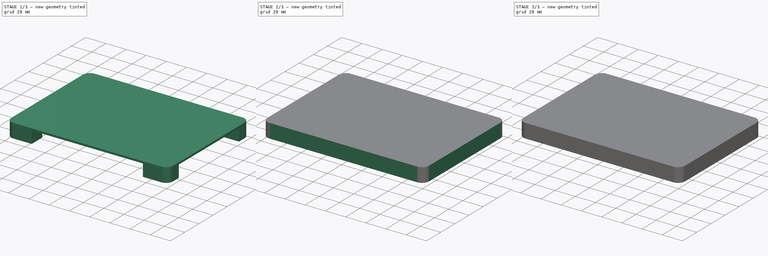
[diagram: build sequence overview — one tinted view per stage of 3, left to right]
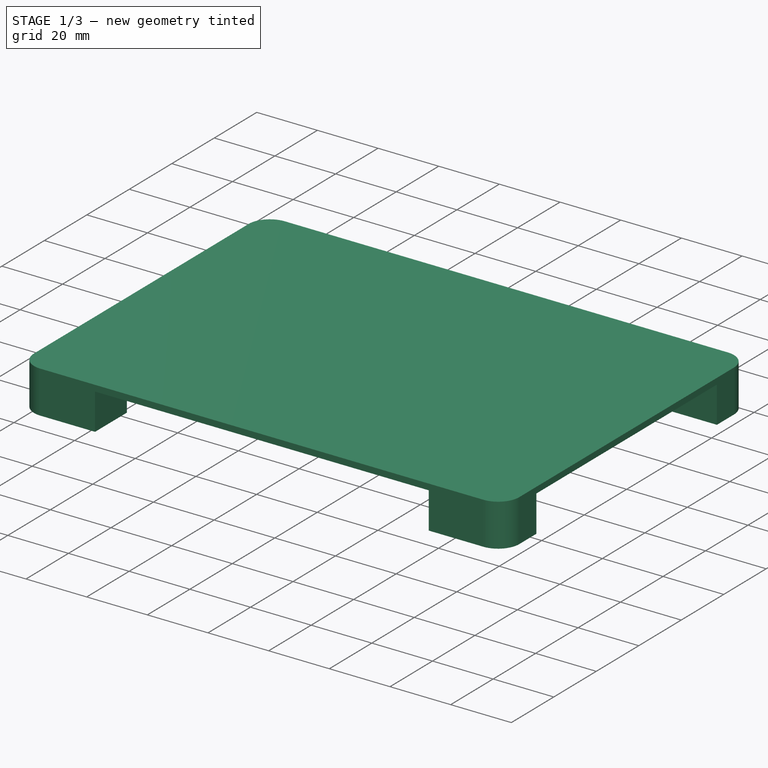
[diagram: stage 1 of 3 — iso view after this stage's code; geometry added in this stage tinted green]
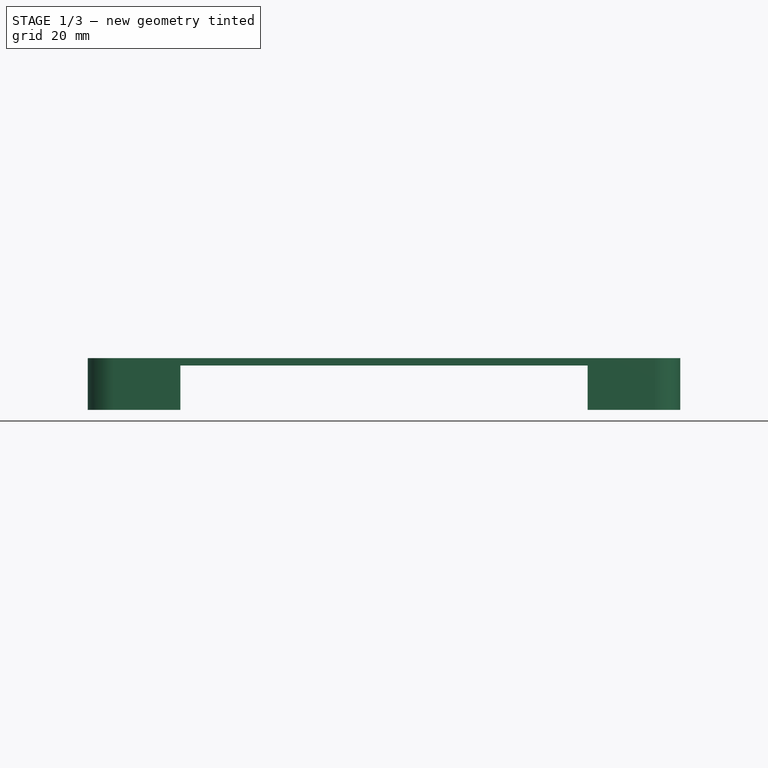
[diagram: stage 1 of 3 — front view after this stage's code; geometry added in this stage tinted green]
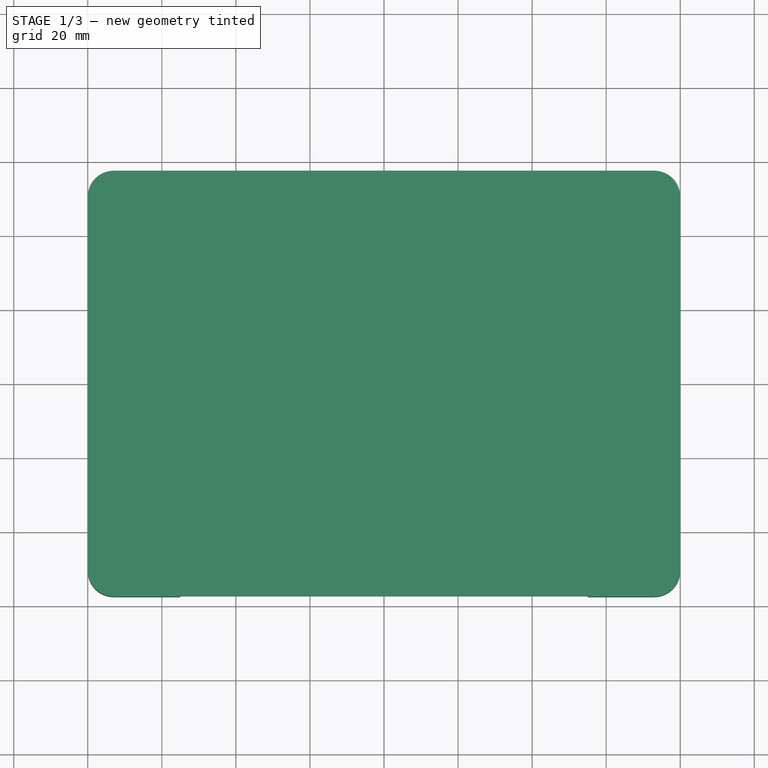
[diagram: stage 1 of 3 — top view after this stage's code; geometry added in this stage tinted green]
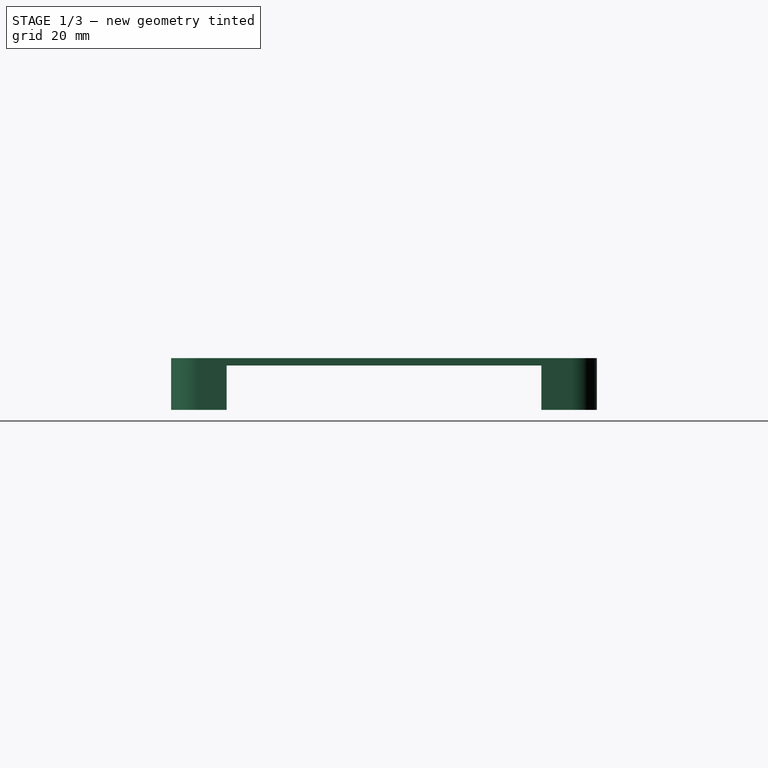
[diagram: stage 1 of 3 — right view after this stage's code; geometry added in this stage tinted green]
FCSTD DOCUMENT  (FreeCAD 1.0R39109 (Git))
Label: magictrackpad-stand
License: All rights reserved
LicenseURL: http://en.wikipedia.org/wiki/All_rights_reserved
objects: Sketcher::SketchObject×3, PartDesign::Pad×3, Part::Part2DObjectPython×2, Part::Extrusion×2, Spreadsheet::Sheet×1, PartDesign::Body×1, Part::MultiFuse×1
note: 21 computed .brp shape members not serialized (recipe doc carries the construction recipe); baked Part::Feature solids carry a one-line shape summary decoded from their .brp

FEATURE [Sketcher::SketchObject] Sketch  label="top-sk"
  ArcFitTolerance = 1e-06
  AttachmentSupport = -> [XY_Plane]
  FullyConstrained = true
  MakeInternals = false
  MapMode = 5
  expr: Constraints[4] = Spreadsheet.magictrackpad_length
  expr: Constraints[5] = Spreadsheet.magictrackpad_width
  sketch-geometry (14):
    g0: LineSegment StartX=-80 StartY=50.5 StartZ=0 EndX=-80 EndY=-50.5 EndZ=0
    g1: LineSegment StartX=-73 StartY=-57.5 StartZ=0 EndX=73 EndY=-57.5 EndZ=0
    g2: LineSegment StartX=80 StartY=-50.5 StartZ=0 EndX=80 EndY=50.5 EndZ=0
    g3: LineSegment StartX=73 StartY=57.5 StartZ=0 EndX=-73 EndY=57.5 EndZ=0
    g4: GeomPoint X=0 Y=57.5 Z=0
    g5: GeomPoint X=-80 Y=0 Z=0
    g6: ArcOfCircle CenterX=-73 CenterY=50.5 CenterZ=0 NormalX=0 NormalY=0 NormalZ=1 AngleXU=0 Radius=7 StartAngle=1.5708 EndAngle=3.14159
    g7: GeomPoint [constr] X=-80 Y=57.5 Z=0
    g8: ArcOfCircle CenterX=73 CenterY=50.5 CenterZ=0 NormalX=0 NormalY=0 NormalZ=1 AngleXU=0 Radius=7 StartAngle=2e-16 EndAngle=1.5708
    g9: GeomPoint [constr] X=80 Y=57.5 Z=0
    g10: ArcOfCircle CenterX=73 CenterY=-50.5 CenterZ=0 NormalX=0 NormalY=0 NormalZ=1 AngleXU=0 Radius=7 StartAngle=4.71239 EndAngle=6.28319
    g11: GeomPoint [constr] X=80 Y=-57.5 Z=0
    g12: ArcOfCircle CenterX=-73 CenterY=-50.5 CenterZ=0 NormalX=0 NormalY=0 NormalZ=1 AngleXU=0 Radius=7 StartAngle=3.14159 EndAngle=4.71239
    g13: GeomPoint [constr] X=-80 Y=-57.5 Z=0
  constraints (30):
    c: Vertical(g0)
    c: Vertical(g2)
    c: Horizontal(g1)
    c: Horizontal(g3)
    c: DistanceY(g13,g7) = 115
    c: DistanceX(g7,g9) = 160
    c: Symmetric(g9,g7,g4)
    c: Symmetric(g7,g13,g5)
    c: PointOnObject(g4,g-2)
    c: PointOnObject(g5,g-1)
    c: PointOnObject(g7,g0)
    c: PointOnObject(g7,g3)
    c: Tangent(g0,g6) = -1.5708
    c: Tangent(g3,g6) = -1.5708
    c: PointOnObject(g9,g2)
    c: PointOnObject(g9,g3)
    c: Tangent(g2,g8) = -1.5708
    c: Tangent(g3,g8) = -1.5708
    c: PointOnObject(g11,g1)
    c: PointOnObject(g11,g2)
    c: Tangent(g1,g10) = -1.5708
    c: Tangent(g2,g10) = -1.5708
    c: PointOnObject(g13,g0)
    c: PointOnObject(g13,g1)
    c: Tangent(g0,g12) = -1.5708
    c: Tangent(g1,g12) = -1.5708
    c: DistanceY(g0,g3) = 7
    c: Horizontal(g0,g2)
    c: Vertical(g1,g3)
    c: Horizontal(g0,g2)
FEATURE [PartDesign::Pad] Pad  label="top"
  Direction = (0,0,1)
  Length = 2
  Length2 = 10
  Profile = -> Sketch
  ReferenceAxis = -> Sketch [N_Axis]
  Suppressed = false
  Type = 0
  expr: Length = Spreadsheet.table_thickness
FEATURE [Sketcher::SketchObject] Sketch001  label="poll-sk"
  ArcFitTolerance = 1e-06
  AttachmentSupport = -> [Pad]
  ExternalGeometry = -> [Pad]
  FullyConstrained = true
  MakeInternals = false
  MapMode = 5
  Placement = pos=(0,0,0) rot=(1,0,0;3.14159rad)
  expr: Constraints[13] = Spreadsheet.poll_width
  expr: Constraints[14] = Spreadsheet.poll_length
  expr: Constraints[56] = Spreadsheet.poll_length
  expr: Constraints[58] = Spreadsheet.poll_width
  sketch-geometry (24):
    g0: LineSegment StartX=-80 StartY=50.5 StartZ=0 EndX=-80 EndY=42.5 EndZ=0
    g1: LineSegment StartX=-80 StartY=42.5 StartZ=0 EndX=-55 EndY=42.5 EndZ=0
    g2: LineSegment StartX=-55 StartY=42.5 StartZ=0 EndX=-55 EndY=57.5 EndZ=0
    g3: LineSegment StartX=-55 StartY=57.5 StartZ=0 EndX=-73 EndY=57.5 EndZ=0
    g4: ArcOfCircle CenterX=-73 CenterY=50.5 CenterZ=0 NormalX=0 NormalY=0 NormalZ=1 AngleXU=0 Radius=7 StartAngle=1.5708 EndAngle=3.14159
    g5: GeomPoint [constr] X=-80 Y=57.5 Z=0
    g6: LineSegment StartX=55 StartY=57.5 StartZ=0 EndX=55 EndY=42.5 EndZ=0
    g7: LineSegment StartX=55 StartY=42.5 StartZ=0 EndX=80 EndY=42.5 EndZ=0
    g8: LineSegment StartX=80 StartY=42.5 StartZ=0 EndX=80 EndY=50.5 EndZ=0
    g9: LineSegment StartX=73 StartY=57.5 StartZ=0 EndX=55 EndY=57.5 EndZ=0
    g10: LineSegment StartX=-80 StartY=-42.5 StartZ=0 EndX=-80 EndY=-50.5 EndZ=0
    g11: LineSegment StartX=-73 StartY=-57.5 StartZ=0 EndX=-55 EndY=-57.5 EndZ=0
    g12: LineSegment StartX=-55 StartY=-57.5 StartZ=0 EndX=-55 EndY=-42.5 EndZ=0
    g13: LineSegment StartX=-55 StartY=-42.5 StartZ=0 EndX=-80 EndY=-42.5 EndZ=0
    g14: LineSegment StartX=55 StartY=-57.5 StartZ=0 EndX=73 EndY=-57.5 EndZ=0
    g15: LineSegment StartX=80 StartY=-50.5 StartZ=0 EndX=80 EndY=-42.5 EndZ=0
    g16: LineSegment StartX=80 StartY=-42.5 StartZ=0 EndX=55 EndY=-42.5 EndZ=0
    g17: LineSegment StartX=55 StartY=-42.5 StartZ=0 EndX=55 EndY=-57.5 EndZ=0
    g18: ArcOfCircle CenterX=73 CenterY=50.5 CenterZ=0 NormalX=0 NormalY=0 NormalZ=1 AngleXU=0 Radius=7 StartAngle=0 EndAngle=1.5708
    g19: GeomPoint [constr] X=80 Y=57.5 Z=0
    g20: ArcOfCircle CenterX=73 CenterY=-50.5 CenterZ=0 NormalX=0 NormalY=0 NormalZ=1 AngleXU=0 Radius=7 StartAngle=4.71239 EndAngle=6.28319
    g21: GeomPoint [constr] X=80 Y=-57.5 Z=0
    g22: ArcOfCircle CenterX=-73 CenterY=-50.5 CenterZ=0 NormalX=0 NormalY=0 NormalZ=1 AngleXU=0 Radius=7 StartAngle=3.14159 EndAngle=4.71239
    g23: GeomPoint [constr] X=-80 Y=-57.5 Z=0
  constraints (60):
    c: Coincident(g0,g1)
    c: Coincident(g1,g2)
    c: Coincident(g2,g3)
    c: Vertical(g0)
    c: Vertical(g2)
    c: Horizontal(g1)
    c: Horizontal(g3)
    c: PointOnObject(g-5,g3)
    c: PointOnObject(g5,g0)
    c: PointOnObject(g5,g3)
    c: Tangent(g0,g4) = -1.5708
    c: Tangent(g3,g4) = -1.5708
    c: Coincident(g0,g-3)
    c: DistanceX(g1,g1) = 25
    c: DistanceY(g2,g2) = 15
    c: Coincident(g6,g7)
    c: Coincident(g7,g8)
    c: Coincident(g9,g6)
    c: Vertical(g6)
    c: Vertical(g8)
    c: Horizontal(g7)
    c: Horizontal(g9)
    c: PointOnObject(g6,g-5)
    c: Coincident(g11,g12)
    c: Coincident(g12,g13)
    c: Coincident(g13,g10)
    c: Vertical(g10)
    c: Vertical(g12)
    c: Horizontal(g11)
    c: Horizontal(g13)
    c: PointOnObject(g10,g-3)
    c: Coincident(g15,g16)
    c: Coincident(g16,g17)
    c: Coincident(g17,g14)
    c: Horizontal(g14)
    c: Horizontal(g16)
    c: Vertical(g15)
    c: Vertical(g17)
    c: PointOnObject(g15,g-4)
    c: PointOnObject(g19,g8)
    c: PointOnObject(g19,g9)
    c: Tangent(g8,g18) = -1.5708
    c: Tangent(g9,g18) = -1.5708
    c: PointOnObject(g21,g14)
    c: PointOnObject(g21,g15)
    c: Tangent(g14,g20) = -1.5708
    c: Tangent(g15,g20) = -1.5708
    c: PointOnObject(g23,g10)
    c: PointOnObject(g23,g11)
    c: Tangent(g10,g22) = -1.5708
    c: Tangent(g11,g22) = -1.5708
    c: Coincident(g11,g-6)
    c: Coincident(g-6,g14)
    c: Coincident(g-4,g8)
    c: Horizontal(g1,g7)
    c: Vertical(g1,g12)
    c: DistanceY(g12,g12) = 15
    c: Horizontal(g12,g16)
    c: DistanceX(g7,g7) = 25
    c: Vertical(g6,g16)
FEATURE [Spreadsheet::Sheet] Spreadsheet
  cells = C1='入力値; D1='計算値; E1='choc; F1='MX; B2='MagicTrackPad横幅; C2=160; D2(magictrackpad_width)==C2; B3='MagicTrackPad縦幅; C3=115; D3(magictrackpad_length)==C3; B4='テーブルの厚さ; C4=2; D4(table_thickness)==C4; B5='MagicTackpadの指が届くところの最大厚さ; C5=8; D5==C5; B6='ゴム足; C6=1; D6==C6; B7='目標高さ; C7=15; D7==C7; E7=10; F7=15; B8='柱の横幅; C8=25; D8(poll_width)==C8; B9='柱の縦幅; C9=15; D9(poll_length)==C9; B10='枠の厚さ; C10=1; D10(edge_width)==C10; B12='柱の高さ; D12(poll_hight)==D7 - D6 - D4
FEATURE [PartDesign::Pad] Pad001  label="poll"
  BaseFeature = -> Pad
  Direction = (0,0,-1)
  Length = 12
  Length2 = 10
  Profile = -> Sketch001
  ReferenceAxis = -> Sketch001 [N_Axis]
  Suppressed = false
  Type = 0
  expr: Length = Spreadsheet.poll_hight
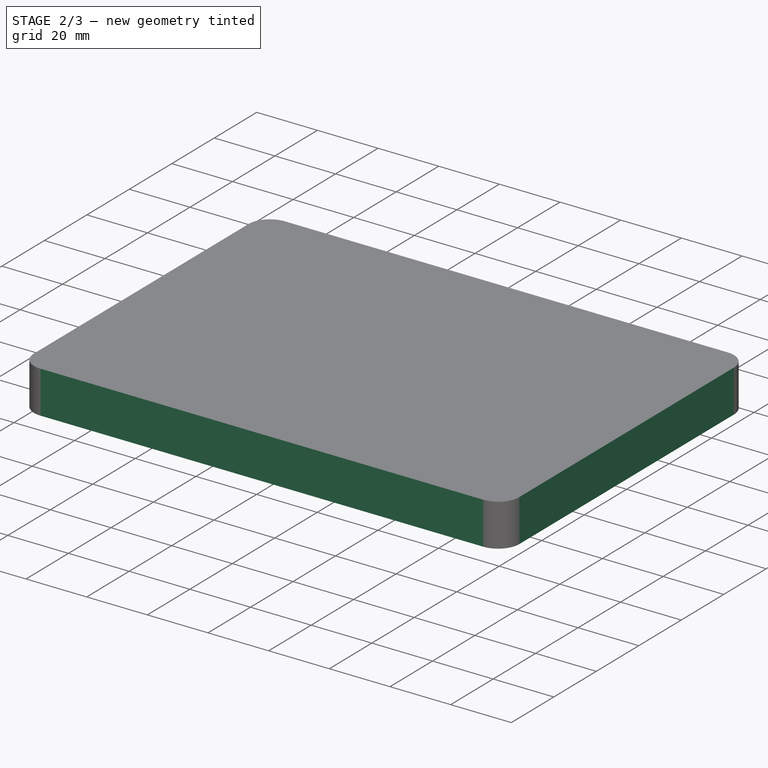
[diagram: stage 2 of 3 — iso view after this stage's code; geometry added in this stage tinted green]
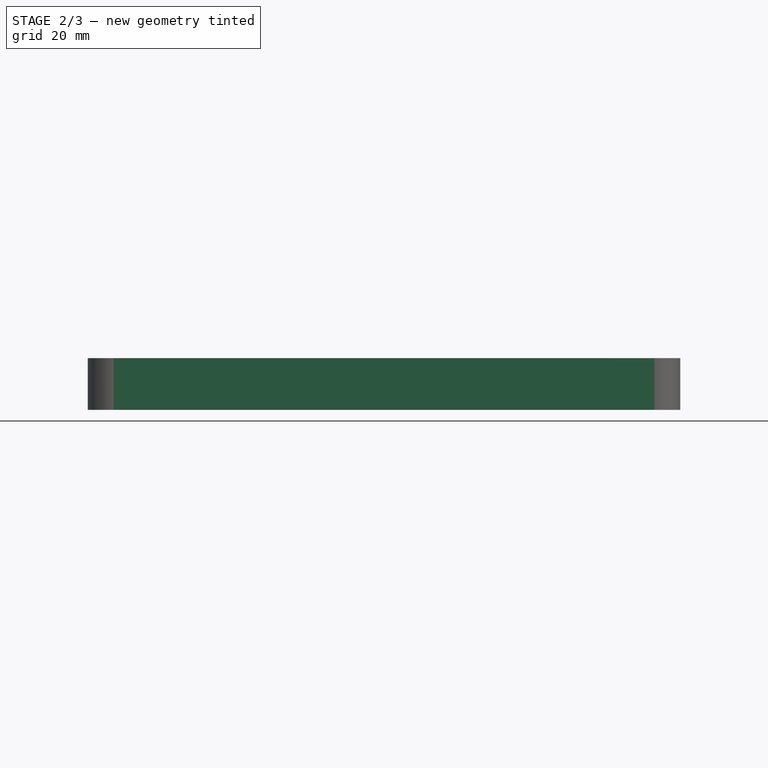
[diagram: stage 2 of 3 — front view after this stage's code; geometry added in this stage tinted green]
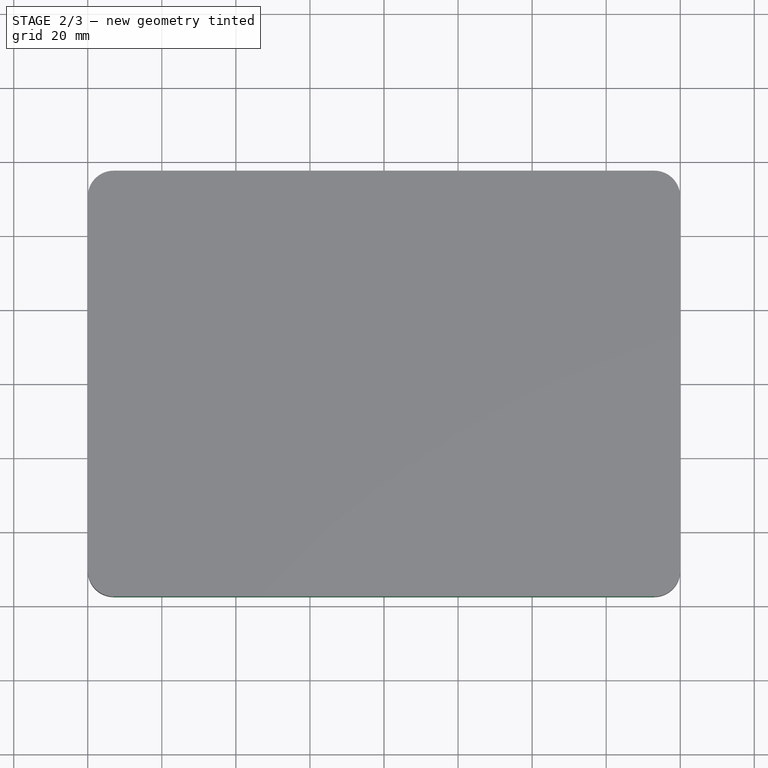
[diagram: stage 2 of 3 — top view after this stage's code; geometry added in this stage tinted green]
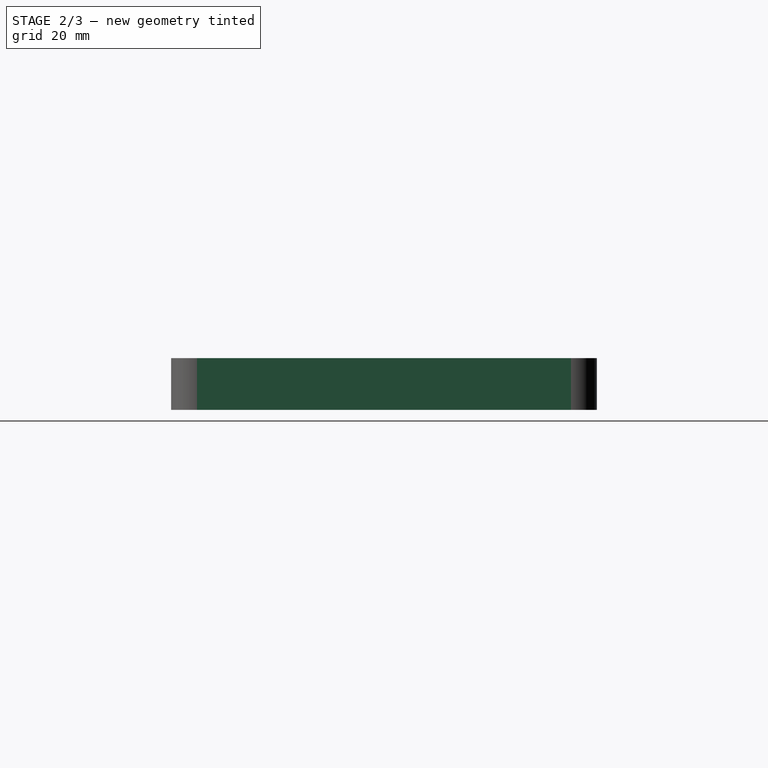
[diagram: stage 2 of 3 — right view after this stage's code; geometry added in this stage tinted green]
FEATURE [Part::Part2DObjectPython] ShapeString001  label="version-shape"  # Draft 2D object (typed FeaturePython)
  FontFile = <userpath>/Library/Fonts/MonaspaceArgon-Medium.otf
  Fuse = false
  Justification = 6
  JustificationReference = 0
  KeepLeftMargin = false
  MakeFace = true
  ObliqueAngle = 0
  Placement = pos=(-28,-29,0) rot=(0,-1,0;3.14159rad)
  ScaleToSize = true
  Size = 5
  String = v2.1.0-MX
  Tracking = 0
FEATURE [Part::Extrusion] Extrude001  label="version"
  Base = -> ShapeString001
  Dir = (0,0,-1)
  DirMode = 2
  FaceMakerClass = Part::FaceMakerBullseye
  FaceMakerMode = 3
  LengthFwd = 0.7
  LengthRev = 0
  Solid = false
  Symmetric = false
FEATURE [Sketcher::SketchObject] Sketch002  label="edge-sk"
  ArcFitTolerance = 1e-06
  AttachmentSupport = -> [Pad]
  ExternalGeometry = -> [Pad]
  FullyConstrained = true
  MakeInternals = false
  MapMode = 5
  Placement = pos=(0,0,0) rot=(1,0,0;3.14159rad)
  sketch-geometry (16):
    g0: LineSegment StartX=-80 StartY=50.5 StartZ=0 EndX=-80 EndY=-50.5 EndZ=0
    g1: LineSegment StartX=80 StartY=-50.5 StartZ=0 EndX=80 EndY=50.5 EndZ=0
    g2: LineSegment StartX=-73 StartY=57.5 StartZ=0 EndX=73 EndY=57.5 EndZ=0
    g3: LineSegment StartX=-73 StartY=-57.5 StartZ=0 EndX=73 EndY=-57.5 EndZ=0
    g4: ArcOfCircle CenterX=-73 CenterY=50.5 CenterZ=0 NormalX=0 NormalY=0 NormalZ=1 AngleXU=0 Radius=7 StartAngle=1.5708 EndAngle=3.14159
    g5: ArcOfCircle CenterX=73 CenterY=50.5 CenterZ=0 NormalX=0 NormalY=0 NormalZ=1 AngleXU=0 Radius=7 StartAngle=-2.7e-15 EndAngle=1.5708
    g6: ArcOfCircle CenterX=-73 CenterY=-50.5 CenterZ=0 NormalX=0 NormalY=0 NormalZ=1 AngleXU=0 Radius=7 StartAngle=3.14159 EndAngle=4.71239
    g7: ArcOfCircle CenterX=73 CenterY=-50.5 CenterZ=0 NormalX=0 NormalY=0 NormalZ=1 AngleXU=0 Radius=7 StartAngle=4.71239 EndAngle=6.28319
    g8: ArcOfCircle CenterX=-73 CenterY=50.5 CenterZ=0 NormalX=0 NormalY=0 NormalZ=1 AngleXU=0 Radius=6 StartAngle=1.5708 EndAngle=3.14159
    g9: ArcOfCircle CenterX=-73 CenterY=-50.5 CenterZ=0 NormalX=0 NormalY=0 NormalZ=1 AngleXU=0 Radius=6 StartAngle=3.14159 EndAngle=4.71239
    g10: ArcOfCircle CenterX=73 CenterY=-50.5 CenterZ=0 NormalX=0 NormalY=0 NormalZ=1 AngleXU=0 Radius=6 StartAngle=4.71239 EndAngle=6.28319
    g11: ArcOfCircle CenterX=73 CenterY=50.5 CenterZ=0 NormalX=0 NormalY=0 NormalZ=1 AngleXU=0 Radius=6 StartAngle=-3.6e-15 EndAngle=1.5708
    g12: LineSegment StartX=79 StartY=50.5 StartZ=0 EndX=79 EndY=-50.5 EndZ=0
    g13: LineSegment StartX=73 StartY=-56.5 StartZ=0 EndX=-73 EndY=-56.5 EndZ=0
    g14: LineSegment StartX=-79 StartY=-50.5 StartZ=0 EndX=-79 EndY=50.5 EndZ=0
    g15: LineSegment StartX=-73 StartY=56.5 StartZ=0 EndX=73 EndY=56.5 EndZ=0
  constraints (44):
    c: Coincident(g4,g2)
    c: Coincident(g4,g0)
    c: Vertical(g4,g2)
    c: Coincident(g5,g1)
    c: Coincident(g5,g2)
    c: Coincident(g1,g-5)
    c: Coincident(g-4,g2)
    c: Horizontal(g5,g4)
    c: Coincident(g2,g-4)
    c: Coincident(g0,g-3)
    c: Coincident(g0,g-3)
    c: Coincident(g6,g0)
    c: Coincident(g6,g3)
    c: Coincident(g3,g-6)
    c: Vertical(g6,g4)
    c: Coincident(g3,g-6)
    c: Coincident(g-5,g1)
    c: Coincident(g7,g1)
    c: Coincident(g7,g3)
    c: Vertical(g7,g5)
    c: Coincident(g8,g4)
    c: Vertical(g8,g2)
    c: Horizontal(g8,g0)
    c: Radius(g8) = 6
    c: Coincident(g9,g6)
    c: Horizontal(g9,g0)
    c: Vertical(g9,g3)
    c: Radius(g9) = 6
    c: Coincident(g10,g7)
    c: Vertical(g3,g10)
    c: Horizontal(g10,g1)
    c: Radius(g10) = 6
    c: Coincident(g11,g5)
    c: Horizontal(g11,g1)
    c: Vertical(g11,g2)
    c: Radius(g11) = 6
    c: Coincident(g12,g11)
    c: Coincident(g12,g10)
    c: Coincident(g13,g10)
    c: Coincident(g13,g9)
    c: Coincident(g14,g9)
    c: Coincident(g14,g8)
    c: Coincident(g15,g8)
    c: Coincident(g15,g11)
FEATURE [PartDesign::Pad] Pad002  label="edge"
  BaseFeature = -> Pad001
  Direction = (0,0,-1)
  Length = 12
  Length2 = 10
  Profile = -> Sketch002
  ReferenceAxis = -> Sketch002 [N_Axis]
  Refine = true
  Suppressed = false
  Type = 0
  expr: Length = Spreadsheet.poll_hight
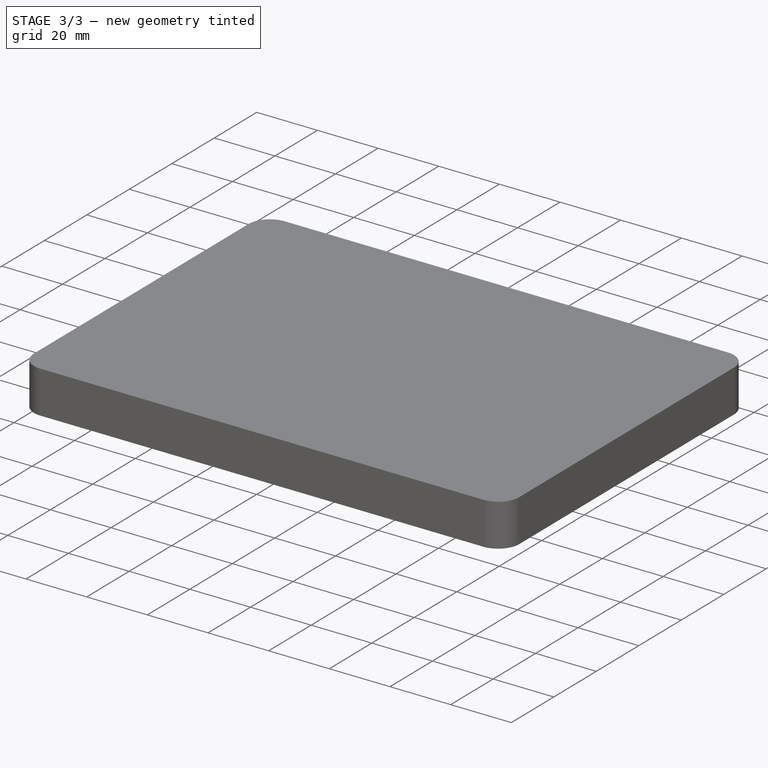
[diagram: stage 3 of 3 — iso view after this stage's code; geometry added in this stage tinted green]
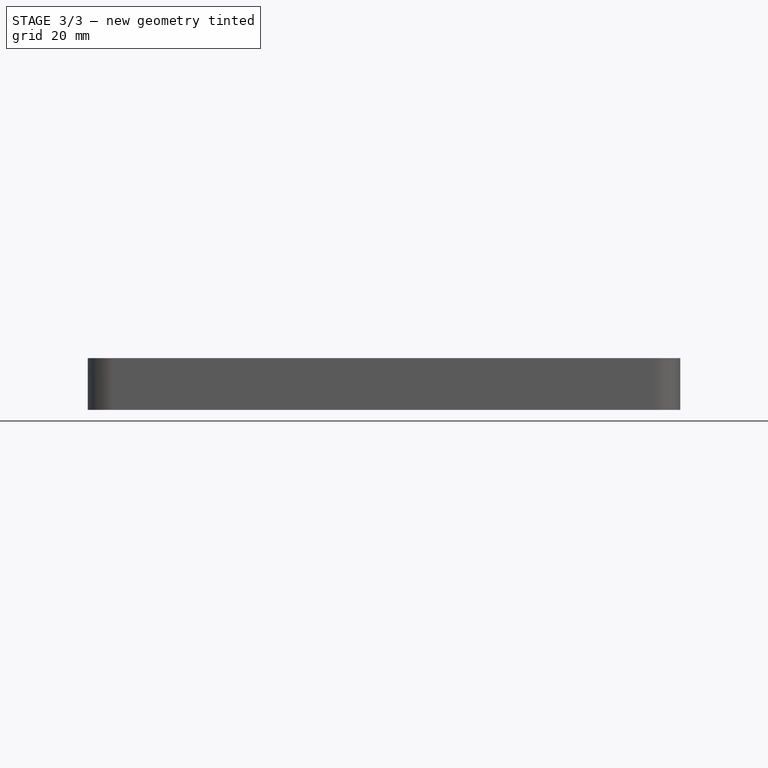
[diagram: stage 3 of 3 — front view after this stage's code; geometry added in this stage tinted green]
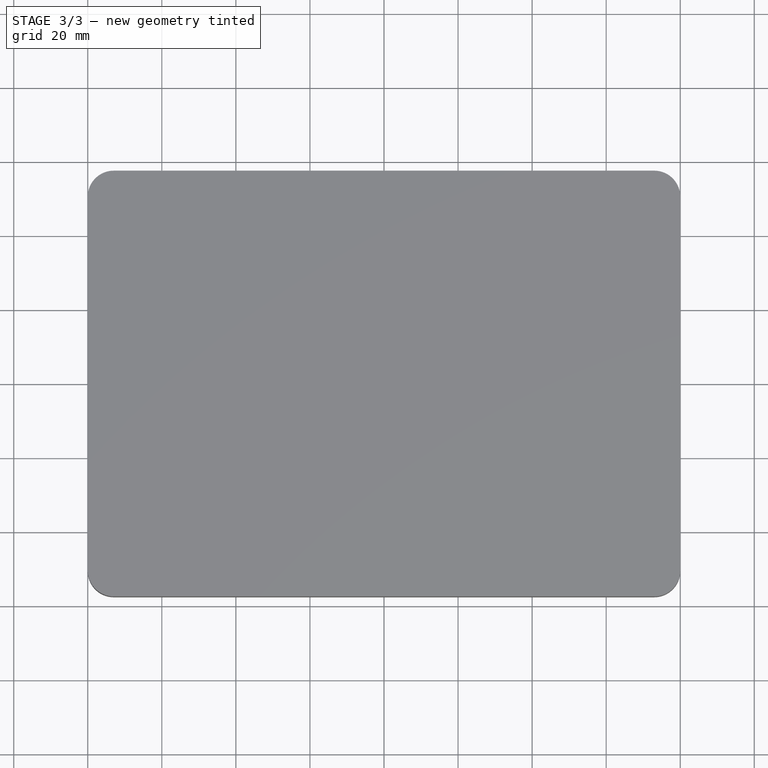
[diagram: stage 3 of 3 — top view after this stage's code; geometry added in this stage tinted green]
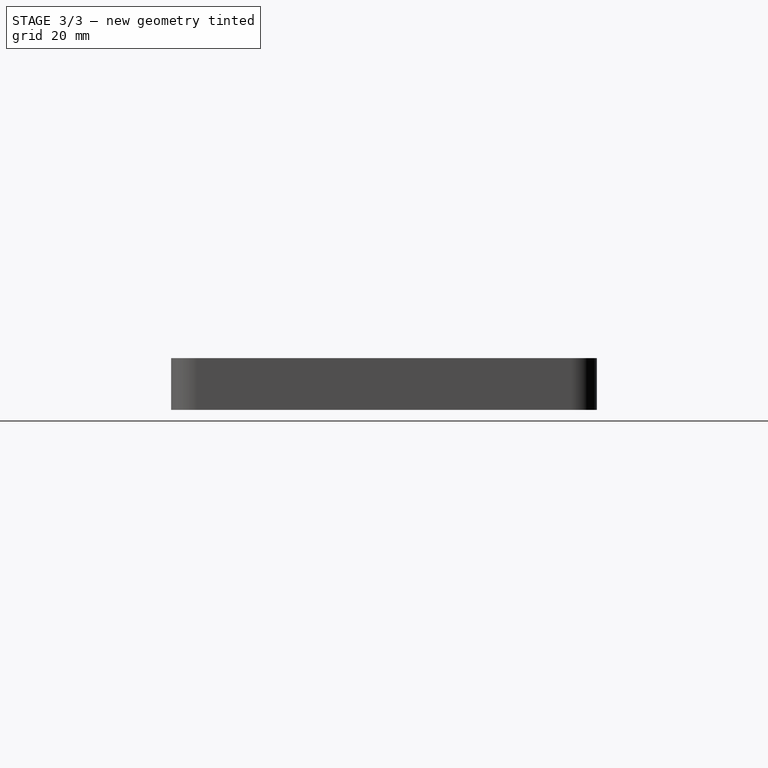
[diagram: stage 3 of 3 — right view after this stage's code; geometry added in this stage tinted green]
FEATURE [Part::Part2DObjectPython] ShapeString  label="title-shape"  # Draft 2D object (typed FeaturePython)
  FontFile = <userpath>/Library/Fonts/MonaspaceArgon-Medium.otf
  Fuse = false
  Justification = 6
  JustificationReference = 0
  KeepLeftMargin = false
  MakeFace = true
  ObliqueAngle = 0
  Placement = pos=(0,-20,0) rot=(0,1,0;3.14159rad)
  ScaleToSize = true
  Size = 5
  String = MagicTrackPadStand
  Tracking = 0
FEATURE [Part::Extrusion] Extrude  label="title"
  Base = -> ShapeString
  Dir = (0,0,-1)
  DirMode = 2
  FaceMakerClass = Part::FaceMakerBullseye
  FaceMakerMode = 3
  LengthFwd = 0.8
  LengthRev = 0
  Solid = false
  Symmetric = false
FEATURE [PartDesign::Body] Body
  AllowCompound = false
  Group = -> [Sketch,Pad,Sketch001,Pad001,Sketch002,Pad002]
  Origin = -> Origin
  Tip = -> Pad002
FEATURE [Part::MultiFuse] Fusion
  Shapes = -> [Body,Extrude,Extrude001]
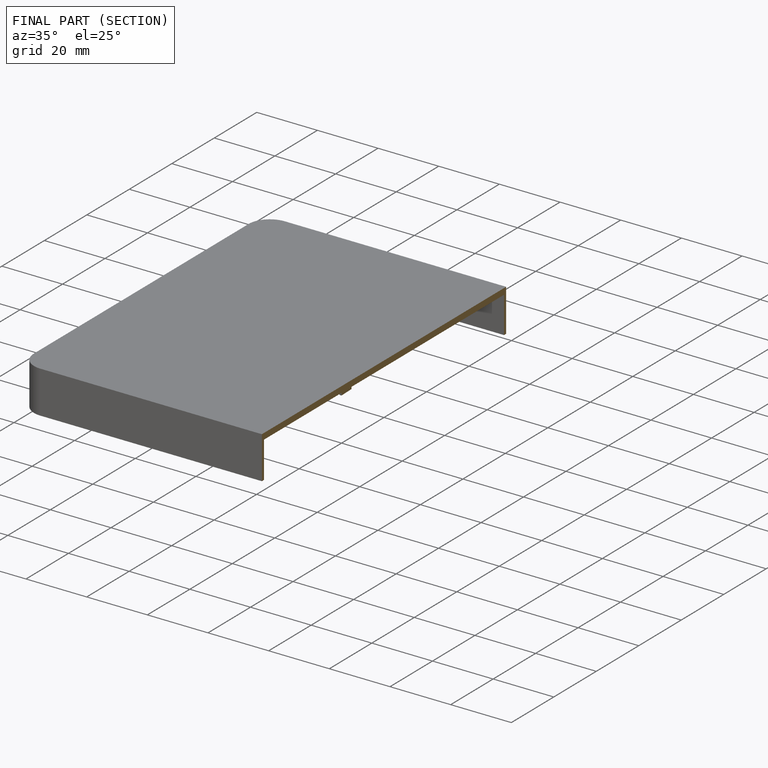
[diagram: finished part — half-section view (interior)]
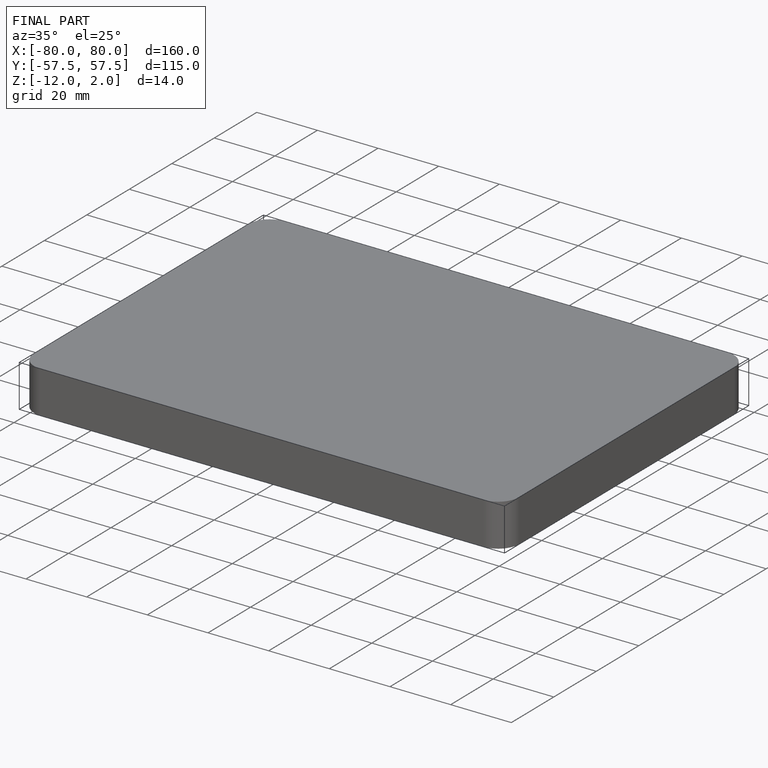
[diagram: finished part — iso view with bounding-box wireframe]
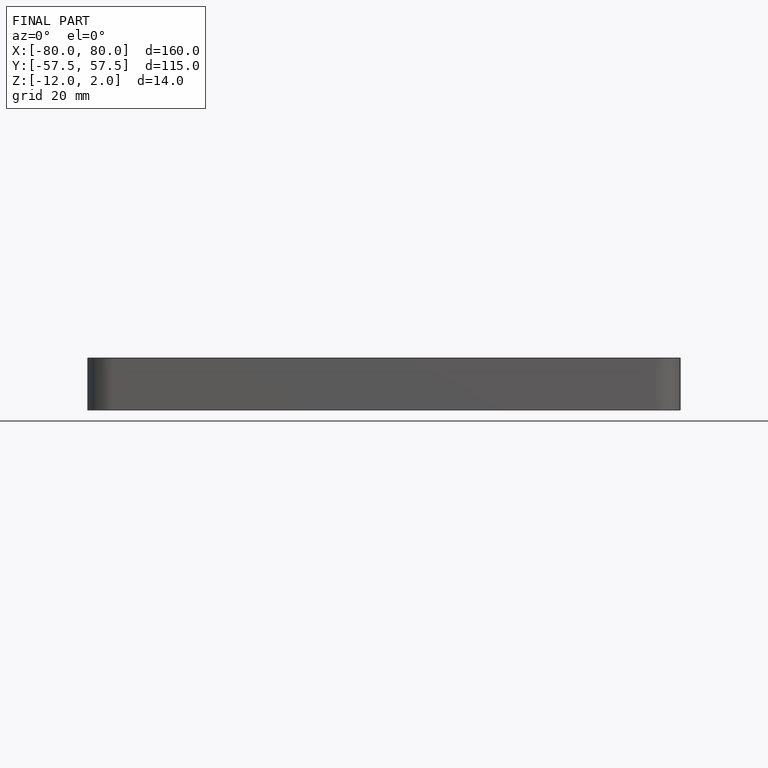
[diagram: finished part — front view with bounding-box wireframe]
